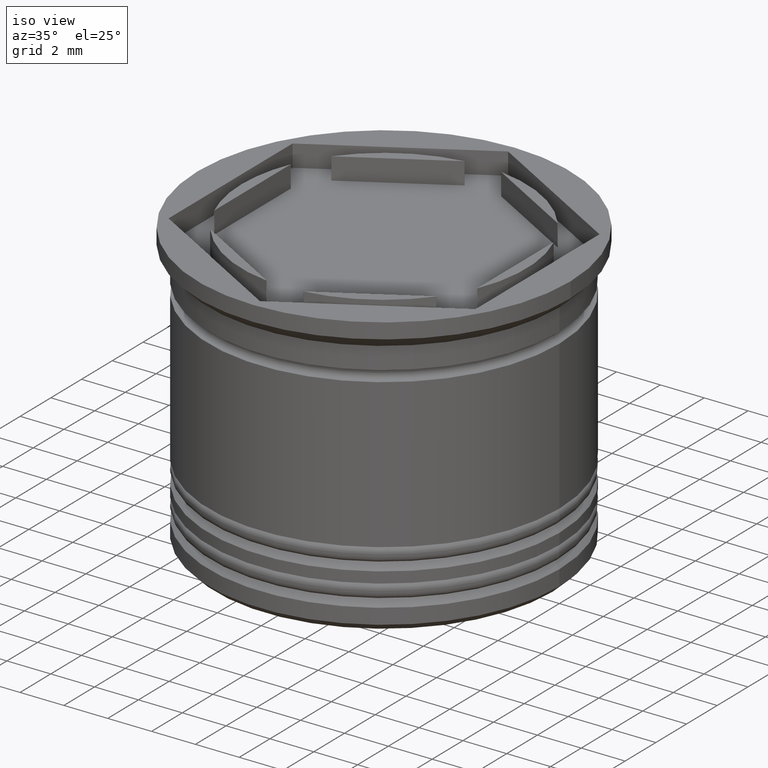
[diagram: clean part render]
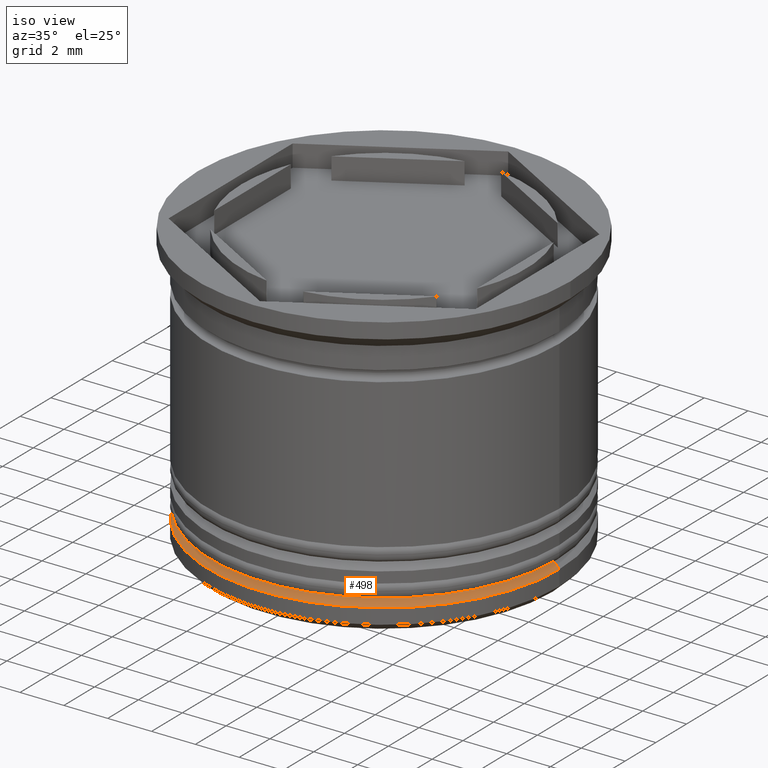
[diagram: same view with one face highlighted and labeled with its STEP entity id]
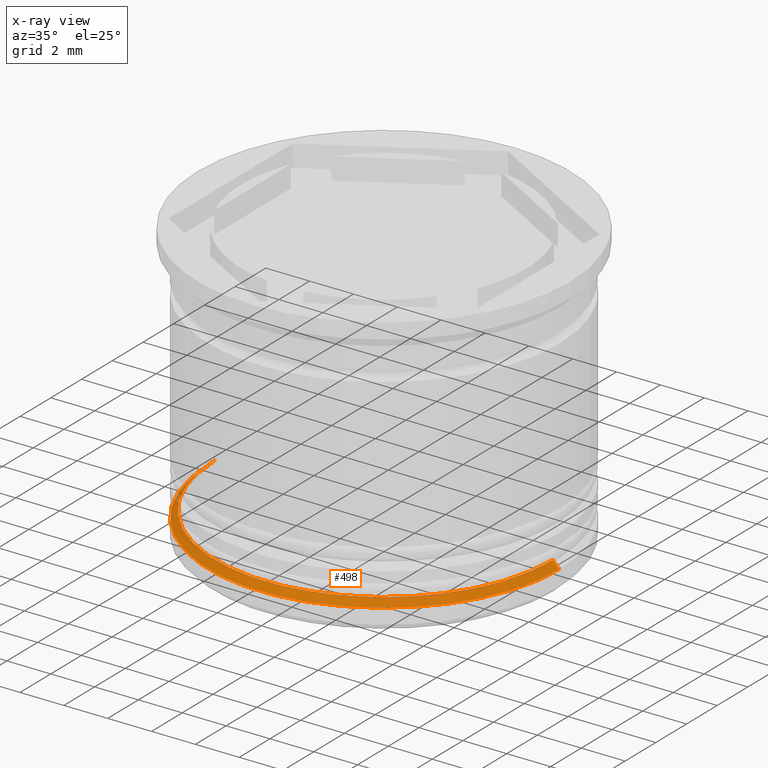
[diagram: x-ray of the same camera — body ghosted, the highlighted face saturated]
A machine part, iso view. The second image highlights one B-rep face of the part: STEP entity #498.
The next image is the same camera in x-ray: the body ghosted, the highlighted face saturated — about 2% of this face is hidden behind the body in this view.
In plain terms, the highlighted conical surface has half-angle 45 deg.
Its self-contained STEP definition (entity closure, byte-faithful):
#73 = CARTESIAN_POINT ( 'NONE',  ( 0.000000000000000000, 0.000000000000000000, -12.00000000000000355 ) ) ;
#181 = EDGE_CURVE ( 'NONE', #1320, #598, #1775, .T. ) ;
#198 = ORIENTED_EDGE ( 'NONE', *, *, #1353, .F. ) ;
#203 = DIRECTION ( 'NONE',  ( 0.7071067811865512365, 8.659560562354978464E-17, -0.7071067811865439090 ) ) ;
#354 = VECTOR ( 'NONE', #203, 1000.000000000000000 ) ;
#411 = VERTEX_POINT ( 'NONE', #1456 ) ;
#448 = ORIENTED_EDGE ( 'NONE', *, *, #1184, .F. ) ;
#459 = DIRECTION ( 'NONE',  ( -1.000000000000000000, 0.000000000000000000, 0.000000000000000000 ) ) ;
#468 = CARTESIAN_POINT ( 'NONE',  ( -7.700000000000000178, 9.429780353434619030E-16, -11.70000000000000639 ) ) ;
#498 = ADVANCED_FACE ( 'NONE', ( #1368 ), #1182, .T. ) ;
#598 = VERTEX_POINT ( 'NONE', #941 ) ;
#704 = CARTESIAN_POINT ( 'NONE',  ( 0.000000000000000000, 0.000000000000000000, -11.70000000000000639 ) ) ;
#718 = CARTESIAN_POINT ( 'NONE',  ( -7.499999999999991118, 0.000000000000000000, -11.50000000000000000 ) ) ;
#892 = AXIS2_PLACEMENT_3D ( 'NONE', #1518, #1835, #459 ) ;
#941 = CARTESIAN_POINT ( 'NONE',  ( -8.000000000000000000, 9.797174393178825657E-16, -12.00000000000000355 ) ) ;
#987 = VERTEX_POINT ( 'NONE', #1243 ) ;
#993 = CARTESIAN_POINT ( 'NONE',  ( 7.499999999999991118, 9.184850993605138084E-16, -11.50000000000000000 ) ) ;
#1109 = DIRECTION ( 'NONE',  ( 0.000000000000000000, 0.000000000000000000, -1.000000000000000000 ) ) ;
#1143 = VECTOR ( 'NONE', #1337, 1000.000000000000000 ) ;
#1149 = CIRCLE ( 'NONE', #1991, 7.700000000000000178 ) ;
#1182 = CONICAL_SURFACE ( 'NONE', #892, 7.499999999999991118, 0.7853981633974533860 ) ;
#1184 = EDGE_CURVE ( 'NONE', #1320, #411, #1149, .T. ) ;
#1243 = CARTESIAN_POINT ( 'NONE',  ( 8.000000000000000000, 0.000000000000000000, -12.00000000000000355 ) ) ;
#1274 = DIRECTION ( 'NONE',  ( -1.000000000000000000, 0.000000000000000000, 0.000000000000000000 ) ) ;
#1318 = CIRCLE ( 'NONE', #1961, 8.000000000000000000 ) ;
#1320 = VERTEX_POINT ( 'NONE', #468 ) ;
#1323 = DIRECTION ( 'NONE',  ( -1.000000000000000000, 0.000000000000000000, 0.000000000000000000 ) ) ;
#1337 = DIRECTION ( 'NONE',  ( -0.7071067811865512365, 0.000000000000000000, -0.7071067811865439090 ) ) ;
#1353 = EDGE_CURVE ( 'NONE', #987, #598, #1318, .T. ) ;
#1368 = FACE_OUTER_BOUND ( 'NONE', #1582, .T. ) ;
#1456 = CARTESIAN_POINT ( 'NONE',  ( 7.700000000000000178, 0.000000000000000000, -11.70000000000000639 ) ) ;
#1466 = DIRECTION ( 'NONE',  ( -0.000000000000000000, -0.000000000000000000, 1.000000000000000000 ) ) ;
#1468 = EDGE_CURVE ( 'NONE', #411, #987, #1762, .T. ) ;
#1518 = CARTESIAN_POINT ( 'NONE',  ( 0.000000000000000000, 0.000000000000000000, -11.50000000000000000 ) ) ;
#1582 = EDGE_LOOP ( 'NONE', ( #1884, #448, #1818, #198 ) ) ;
#1762 = LINE ( 'NONE', #993, #354 ) ;
#1775 = LINE ( 'NONE', #718, #1143 ) ;
#1818 = ORIENTED_EDGE ( 'NONE', *, *, #181, .T. ) ;
#1835 = DIRECTION ( 'NONE',  ( 0.000000000000000000, 0.000000000000000000, -1.000000000000000000 ) ) ;
#1884 = ORIENTED_EDGE ( 'NONE', *, *, #1468, .F. ) ;
#1961 = AXIS2_PLACEMENT_3D ( 'NONE', #73, #1109, #1274 ) ;
#1991 = AXIS2_PLACEMENT_3D ( 'NONE', #704, #1466, #1323 ) ;